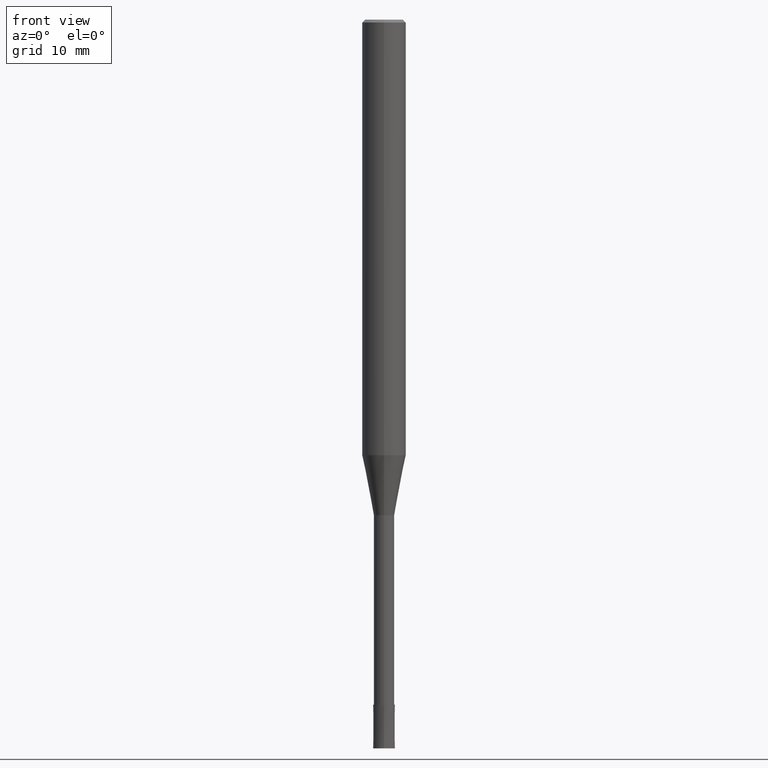
[diagram: clean part render]
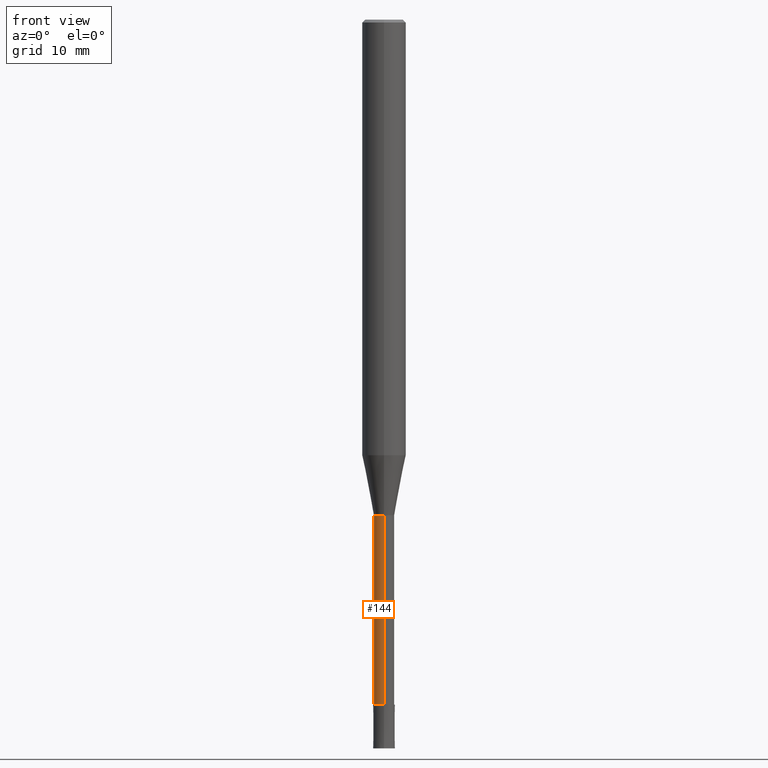
[diagram: same view with one face highlighted and labeled with its STEP entity id]
A machine part, front view. The second image highlights one B-rep face of the part: STEP entity #144.
In plain terms, the highlighted cylindrical surface (edge-blend (fillet) strip) has radius 1.4 mm, axis along (-0, -0, 1).
Its self-contained STEP definition (entity closure, byte-faithful):
#100=EDGE_CURVE('',#116,#156,#238,.T.);
#116=VERTEX_POINT('',#257);
#122=VERTEX_POINT('',#264);
#140=EDGE_CURVE('',#122,#184,#282,.T.);
#144=ADVANCED_FACE('',(#286),#287,.T.);
#156=VERTEX_POINT('',#301);
#174=EDGE_CURVE('',#156,#122,#321,.T.);
#184=VERTEX_POINT('',#333);
#202=EDGE_CURVE('',#116,#184,#354,.T.);
#238=LINE('',#385,#386);
#257=CARTESIAN_POINT('',(1.71438766503364E-016,-1.39995,-94.0));
#264=CARTESIAN_POINT('',(0.0,1.39995,-68.0));
#282=LINE('',#444,#445);
#286=FACE_OUTER_BOUND('',#450,.T.);
#287=CYLINDRICAL_SURFACE('',#451,1.39995);
#301=CARTESIAN_POINT('',(1.71438766503364E-016,-1.39995,-68.0));
#321=CIRCLE('',#496,1.39995);
#333=CARTESIAN_POINT('',(0.0,1.39995,-94.0));
#354=CIRCLE('',#533,1.39995);
#385=CARTESIAN_POINT('',(1.71438766503364E-016,-1.39995,-81.0));
#386=VECTOR('',#552,1.0);
#444=CARTESIAN_POINT('',(-1.71438766503364E-016,1.39995,-81.0));
#445=VECTOR('',#597,1.0);
#450=EDGE_LOOP('',(#602,#603,#604,#605));
#451=AXIS2_PLACEMENT_3D('',#606,#607,#608);
#496=AXIS2_PLACEMENT_3D('',#654,#655,#656);
#533=AXIS2_PLACEMENT_3D('',#703,#704,#705);
#552=DIRECTION('',(-0.0,-0.0,1.0));
#597=DIRECTION('',(0.0,0.0,-1.0));
#602=ORIENTED_EDGE('',*,*,#140,.T.);
#603=ORIENTED_EDGE('',*,*,#202,.F.);
#604=ORIENTED_EDGE('',*,*,#100,.T.);
#605=ORIENTED_EDGE('',*,*,#174,.T.);
#606=CARTESIAN_POINT('',(0.0,0.0,-81.0));
#607=DIRECTION('',(-0.0,-0.0,1.0));
#608=DIRECTION('',(0.0,1.0,0.0));
#654=CARTESIAN_POINT('',(0.0,0.0,-68.0));
#655=DIRECTION('',(0.0,0.0,-1.0));
#656=DIRECTION('',(0.0,1.0,0.0));
#703=CARTESIAN_POINT('',(0.0,0.0,-94.0));
#704=DIRECTION('',(0.0,0.0,-1.0));
#705=DIRECTION('',(0.0,1.0,0.0));